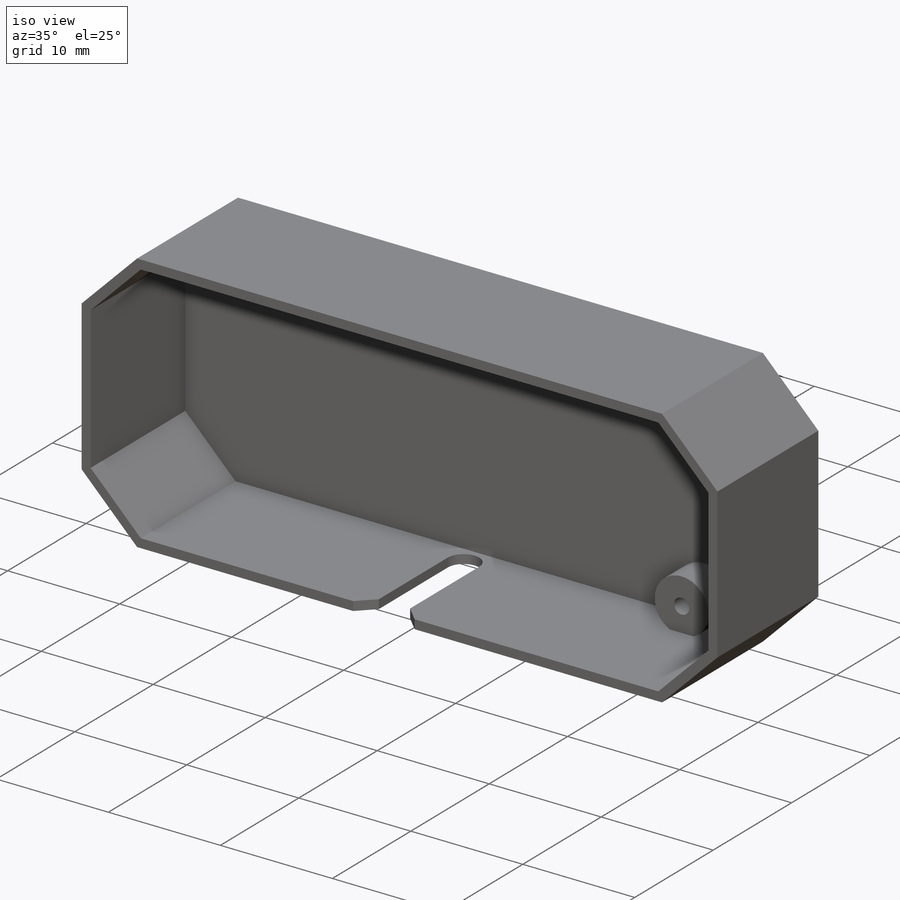
[diagram: iso view]
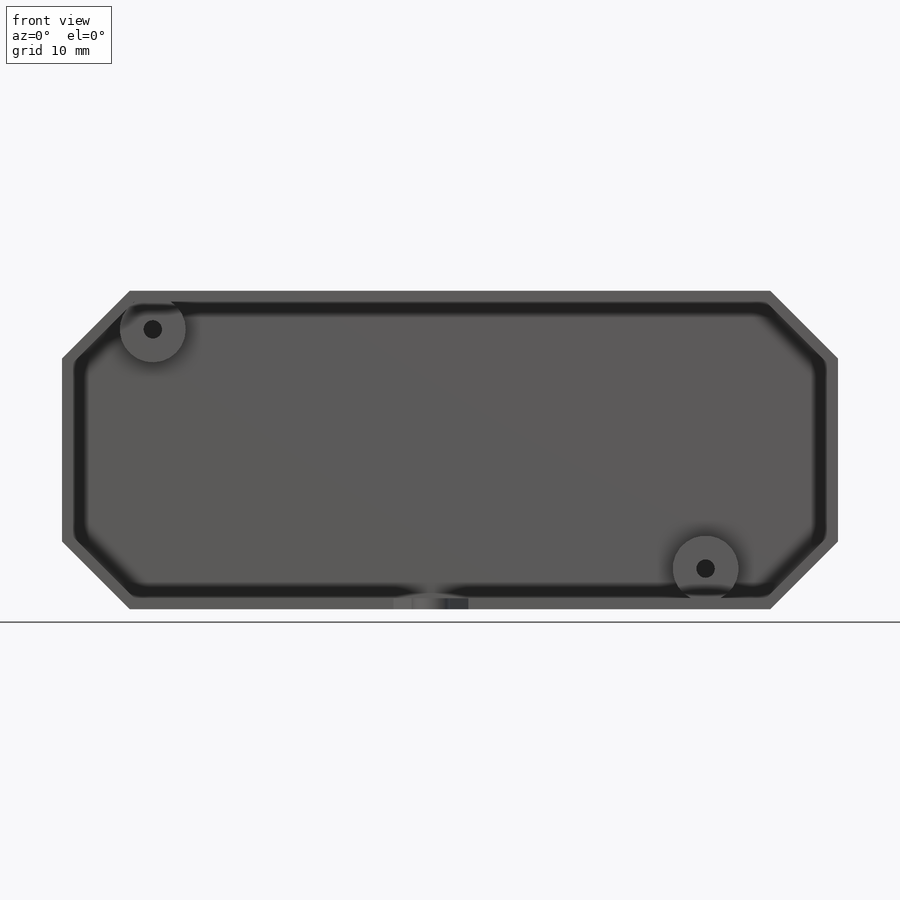
[diagram: front view]
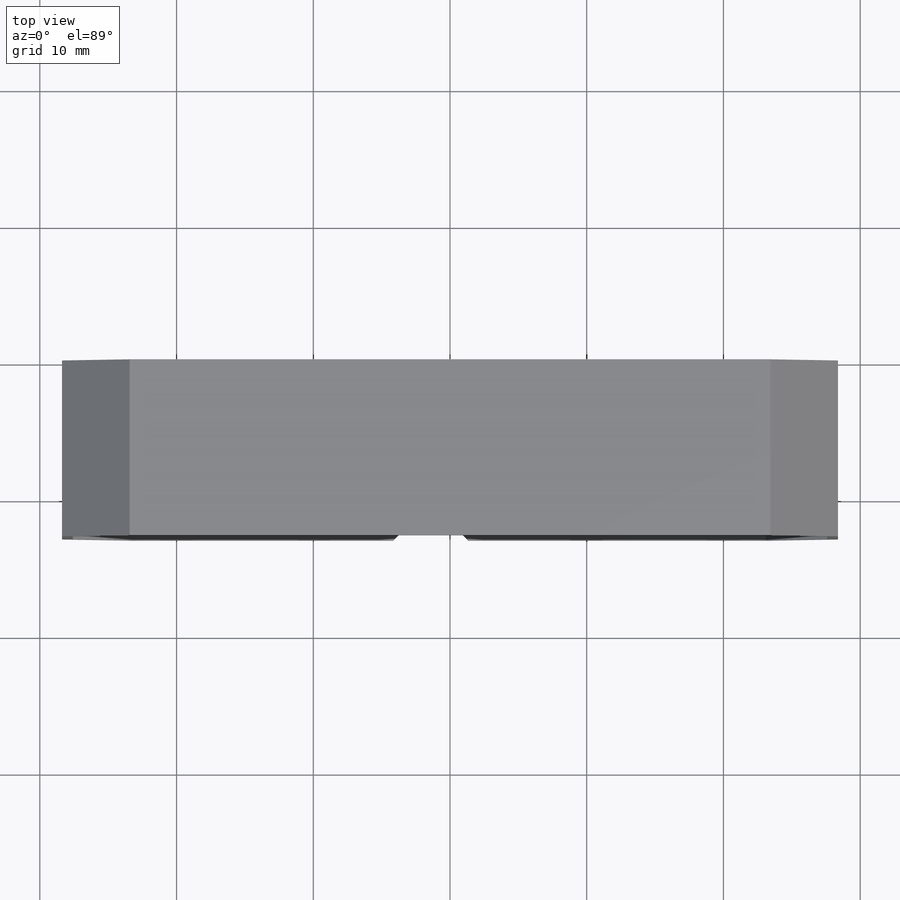
[diagram: top view]
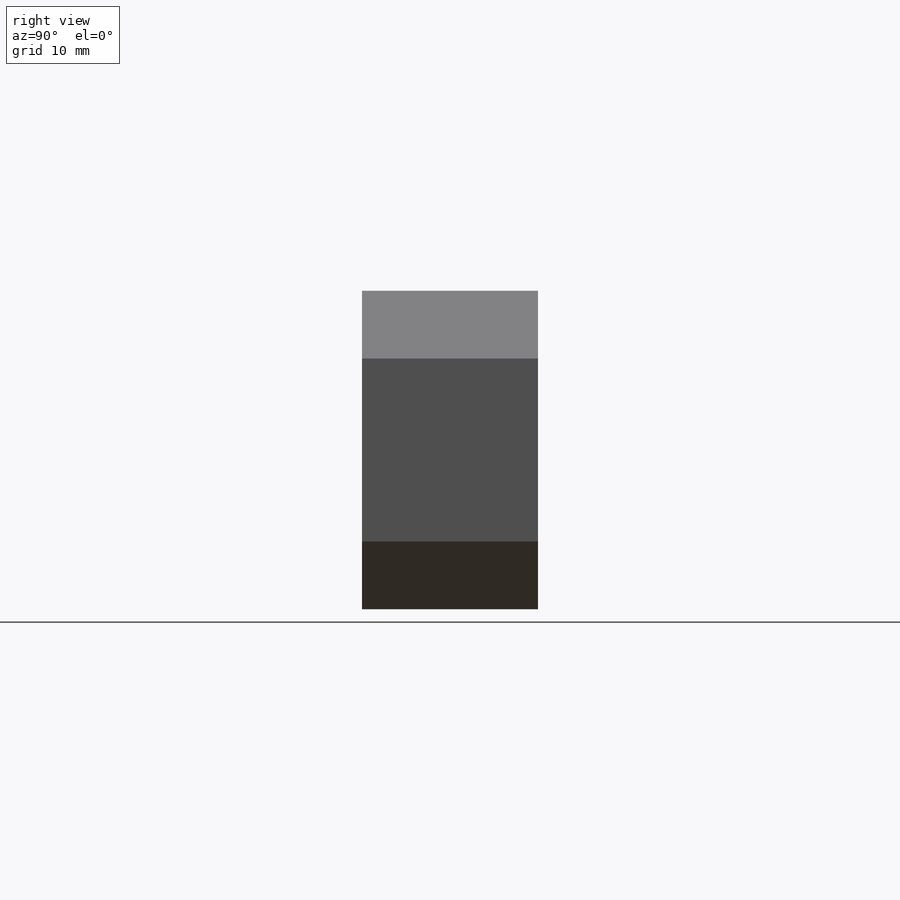
[diagram: right view]
SOLIDWORKS PART (.sldprt)
format: sldprt  version: not decoded by parser v0  size: 251,392 bytes
history: native  units: mm
features: sketch x6, extrude x3, cut_extrude x3, material x1 (+12 scaffold rows collapsed)
feature tree (25):
  scaffold x12  (default folders/planes/origin — collapsed)
  material  "Material <not specified>"
  sketch  "Sketch1"  dims[D1=56.7688mm D2=23.2916mm]
  extrude  "Boss-Extrude1"  Depth=0.8mm
  sketch  "Sketch2"  dims[c1.D1=7.0mm c1.D2=7.0mm c1.D3=7.0mm c1.D4=7.0mm c1.D5=~6.032147mm c2.D5=45.0deg c2.D6=7.0mm c3.D6=45.0deg c3.D7=7.0mm c4.D7=45.0deg c4.D8=~5.128115mm c5.D8=45.0deg]
  cut_extrude  "Cut-Extrude1"  [1 undecoded]
  sketch  "Sketch3"  dims[D1=0.8mm D2=0.8mm]
  extrude  "Boss-Extrude2"  Depth=12.065mm
  sketch  "Sketch4"  dims[c1.D1=4.826mm c1.D2=4.826mm c1.D3=2.032mm c1.D4=2.159mm c1.D5=43.4594mm c1.D6=5.842mm c2.D5=8.89mm]
  extrude  "Boss-Extrude3"  Depth=2.794mm
  sketch  "Sketch5"  dims[D1=1.3462mm D2=1.3462mm]
  cut_extrude  "Cut-Extrude2"  [1 undecoded]
  sketch  "Sketch6"  dims[c1.D2=1.397mm c1.D1=2.794mm c1.D3=9.525mm c1.D4=1.905mm c1.D5=1.905mm c1.D6=1.905mm c2.D6=45.0deg c2.D7=~1.578685mm c3.D7=45.0deg c3.D1=~1.347038mm c4.D1=45.0deg c4.D3=2.794mm c4.D7=10.16mm]
  cut_extrude  "Cut-Extrude3"  Depth=2.794mm
decode coverage: 10 of 12 modeling features carry decoded parameters
note: ~ marks probable driven/reference dimensions
note: 2 parameter values undecoded
note: suppression state not decoded; provenance and decode notes live in map.json
